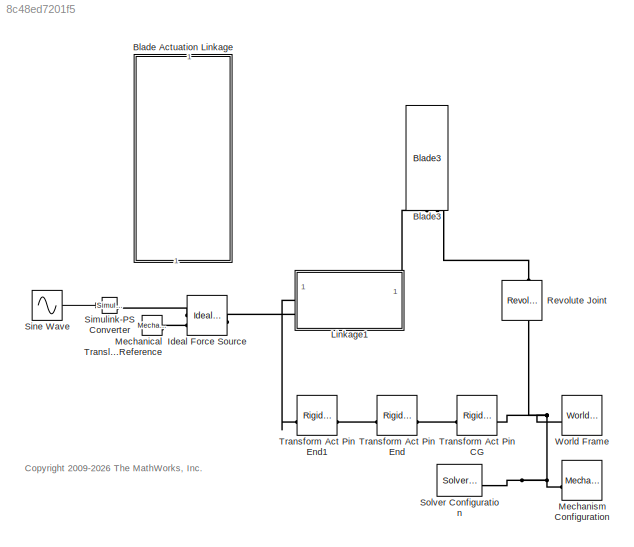
MODEL slx_8c48ed7201f5
KIND model
CONFIG EnableMultiTasking = on
CONFIG SolverName = ode15s
BLOCK [SubSystem] Blade Actuation Linkage
  NameLocation = left
BLOCK [Reference] Blade3  REF=Blades_Lib/Blades/Blade3
  NameLocation = right
  SourceBlock = Blades_Lib/Blades/Blade3
  SourceType = SubSystem
BLOCK [Reference] Ideal Force Source  REF=fl_lib/Mechanical/Mechanical Sources/Ideal Force Source
  SourceBlock = fl_lib/Mechanical/Mechanical Sources/Ideal Force Source
  SourceType = Ideal Force Source
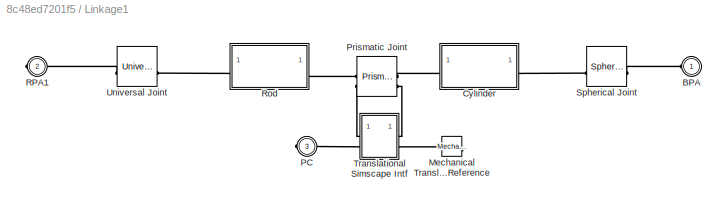
BLOCK [SubSystem] Linkage1
BLOCK [PMIOPort] Linkage1/BPA
  Side = Left
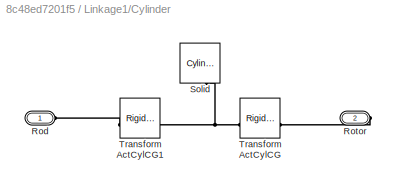
BLOCK [SubSystem] Linkage1/Cylinder
BLOCK [PMIOPort] Linkage1/Cylinder/Rod
  Side = Left
BLOCK [PMIOPort] Linkage1/Cylinder/Rotor
  Port = 2
  Side = Right
BLOCK [Reference] Linkage1/Cylinder/Solid  REF=sm_lib/Body Elements/Cylindrical Solid
  NameLocation = left
  SourceBlock = sm_lib/Body Elements/Cylindrical Solid
  SourceType = Cylindrical Solid
BLOCK [Reference] Linkage1/Cylinder/Transform ActCylCG  REF=sm_lib/Frames and
Transforms/Rigid
Transform
  SourceBlock = sm_lib/Frames and\nTransforms/Rigid\nTransform
  SourceType = Rigid\nTransform
BLOCK [Reference] Linkage1/Cylinder/Transform ActCylCG1  REF=sm_lib/Frames and
Transforms/Rigid
Transform
  SourceBlock = sm_lib/Frames and\nTransforms/Rigid\nTransform
  SourceType = Rigid\nTransform
BLOCK [Reference] Linkage1/Mechanical Translational Reference  REF=fl_lib/Mechanical/Translational
Elements/Mechanical
Translational
Reference
  NameLocation = top
  SourceBlock = fl_lib/Mechanical/Translational\nElements/Mechanical\nTranslational\nReference
  SourceType = Mechanical\nTranslational\nReference
BLOCK [PMIOPort] Linkage1/PC
  Port = 3
  Side = Right
BLOCK [Reference] Linkage1/Prismatic  Joint  REF=sm_lib/Joints/Prismatic
Joint
  NameLocation = top
  SourceBlock = sm_lib/Joints/Prismatic\nJoint
  SourceType = Prismatic\nJoint
BLOCK [PMIOPort] Linkage1/RPA1
  Port = 2
  Side = Right
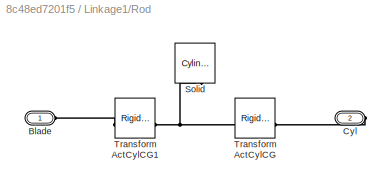
BLOCK [SubSystem] Linkage1/Rod
BLOCK [PMIOPort] Linkage1/Rod/Blade
  Side = Left
BLOCK [PMIOPort] Linkage1/Rod/Cyl
  Port = 2
  Side = Right
BLOCK [Reference] Linkage1/Rod/Solid  REF=sm_lib/Body Elements/Cylindrical Solid
  NameLocation = left
  SourceBlock = sm_lib/Body Elements/Cylindrical Solid
  SourceType = Cylindrical Solid
BLOCK [Reference] Linkage1/Rod/Transform ActCylCG  REF=sm_lib/Frames and
Transforms/Rigid
Transform
  SourceBlock = sm_lib/Frames and\nTransforms/Rigid\nTransform
  SourceType = Rigid\nTransform
BLOCK [Reference] Linkage1/Rod/Transform ActCylCG1  REF=sm_lib/Frames and
Transforms/Rigid
Transform
  SourceBlock = sm_lib/Frames and\nTransforms/Rigid\nTransform
  SourceType = Rigid\nTransform
BLOCK [Reference] Linkage1/Spherical  Joint  REF=sm_lib/Joints/Spherical
Joint
  SourceBlock = sm_lib/Joints/Spherical\nJoint
  SourceType = Spherical\nJoint
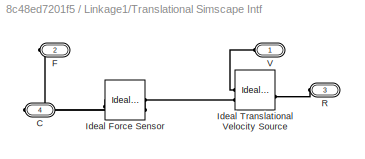
BLOCK [SubSystem] Linkage1/Translational Simscape Intf
BLOCK [PMIOPort] Linkage1/Translational Simscape Intf/C
  Port = 4
  Side = Right
BLOCK [PMIOPort] Linkage1/Translational Simscape Intf/F
  NameLocation = top
  Port = 2
  Side = Right
BLOCK [Reference] Linkage1/Translational Simscape Intf/Ideal Force Sensor  REF=fl_lib/Mechanical/Mechanical Sensors/Ideal Force Sensor
  SourceBlock = fl_lib/Mechanical/Mechanical Sensors/Ideal Force Sensor
  SourceType = Ideal Force Sensor
BLOCK [Reference] Linkage1/Translational Simscape Intf/Ideal Translational Velocity Source  REF=fl_lib/Mechanical/Mechanical Sources/Ideal Translational
Velocity Source
  SourceBlock = fl_lib/Mechanical/Mechanical Sources/Ideal Translational\nVelocity Source
  SourceType = Ideal Translational\nVelocity Source
BLOCK [PMIOPort] Linkage1/Translational Simscape Intf/R
  Port = 3
  Side = Left
BLOCK [PMIOPort] Linkage1/Translational Simscape Intf/V
  NameLocation = top
  Side = Left
BLOCK [Reference] Linkage1/Universal  Joint  REF=sm_lib/Joints/Universal
Joint
  SourceBlock = sm_lib/Joints/Universal\nJoint
  SourceType = Universal\nJoint
BLOCK [Reference] Mechanical Translational Reference  REF=fl_lib/Mechanical/Translational
Elements/Mechanical
Translational
Reference
  SourceBlock = fl_lib/Mechanical/Translational\nElements/Mechanical\nTranslational\nReference
  SourceType = Mechanical\nTranslational\nReference
BLOCK [Reference] Mechanism Configuration  REF=sm_lib/Utilities/Mechanism
Configuration
  SourceBlock = sm_lib/Utilities/Mechanism\nConfiguration
  SourceType = Mechanism\nConfiguration
BLOCK [Reference] Revolute Joint  REF=sm_lib/Joints/Revolute Joint
  NameLocation = right
  SourceBlock = sm_lib/Joints/Revolute Joint
  SourceType = Revolute Joint
BLOCK [Reference] Simulink-PS Converter  REF=nesl_utility/Simulink-PS
Converter
  SourceBlock = nesl_utility/Simulink-PS\nConverter
  SourceType = Simulink-PS\nConverter
BLOCK [Sin] Sine Wave
  Amplitude = 1e5
  Phase = pi/2
  SampleTime = 0
BLOCK [Reference] Solver Configuration  REF=nesl_utility/Solver
Configuration
  SourceBlock = nesl_utility/Solver\nConfiguration
  SourceType = Solver\nConfiguration
BLOCK [Reference] Transform Act Pin CG  REF=sm_lib/Frames and
Transforms/Rigid
Transform
  NameLocation = top
  SourceBlock = sm_lib/Frames and\nTransforms/Rigid\nTransform
  SourceType = Rigid\nTransform
BLOCK [Reference] Transform Act Pin End  REF=sm_lib/Frames and
Transforms/Rigid
Transform
  NameLocation = top
  SourceBlock = sm_lib/Frames and\nTransforms/Rigid\nTransform
  SourceType = Rigid\nTransform
BLOCK [Reference] Transform Act Pin End1  REF=sm_lib/Frames and
Transforms/Rigid
Transform
  NameLocation = top
  SourceBlock = sm_lib/Frames and\nTransforms/Rigid\nTransform
  SourceType = Rigid\nTransform
BLOCK [Reference] World Frame  REF=sm_lib/Frames and
Transforms/World Frame
  SourceBlock = sm_lib/Frames and\nTransforms/World Frame
  SourceType = World Frame
ANNOTATION (root): <copyright redacted>
LINE Sine Wave:1 -> Simulink-PS Converter:1
PLINE Blade3:LConn1 -- Linkage1:LConn1
PLINE Blade3:LConn2 -- Revolute Joint:LConn1
PLINE Ideal Force Source:LConn1 -- Linkage1:RConn2
PLINE Ideal Force Source:RConn1 -- Simulink-PS Converter:RConn1
PLINE Ideal Force Source:RConn2 -- Mechanical Translational Reference:LConn1
PLINE Linkage1/BPA:RConn1 -- Linkage1/Spherical  Joint:RConn1
PLINE Linkage1/Cylinder/Rod:RConn1 -- Linkage1/Cylinder/Transform ActCylCG1:RConn1
PLINE Linkage1/Cylinder/Rotor:RConn1 -- Linkage1/Cylinder/Transform ActCylCG:LConn1
PNET net1: Linkage1/Cylinder/Solid:RConn1 -- Linkage1/Cylinder/Transform ActCylCG1:LConn1 -- Linkage1/Cylinder/Transform ActCylCG:RConn1
PLINE Linkage1/Cylinder:LConn1 -- Linkage1/Prismatic  Joint:LConn1
PLINE Linkage1/Cylinder:RConn1 -- Linkage1/Spherical  Joint:LConn1
PLINE Linkage1/Mechanical Translational Reference:LConn1 -- Linkage1/Translational Simscape Intf:RConn2
PLINE Linkage1/PC:RConn1 -- Linkage1/Translational Simscape Intf:LConn2
PLINE Linkage1/Prismatic  Joint:LConn2 -- Linkage1/Translational Simscape Intf:RConn1
PLINE Linkage1/Prismatic  Joint:RConn1 -- Linkage1/Rod:RConn1
PLINE Linkage1/Prismatic  Joint:RConn2 -- Linkage1/Translational Simscape Intf:LConn1
PLINE Linkage1/RPA1:RConn1 -- Linkage1/Universal  Joint:RConn1
PLINE Linkage1/Rod/Blade:RConn1 -- Linkage1/Rod/Transform ActCylCG1:RConn1
PLINE Linkage1/Rod/Cyl:RConn1 -- Linkage1/Rod/Transform ActCylCG:LConn1
PNET net2: Linkage1/Rod/Solid:RConn1 -- Linkage1/Rod/Transform ActCylCG1:LConn1 -- Linkage1/Rod/Transform ActCylCG:RConn1
PLINE Linkage1/Rod:LConn1 -- Linkage1/Universal  Joint:LConn1
PLINE Linkage1/Translational Simscape Intf/C:RConn1 -- Linkage1/Translational Simscape Intf/Ideal Force Sensor:RConn1
PLINE Linkage1/Translational Simscape Intf/F:RConn1 -- Linkage1/Translational Simscape Intf/Ideal Force Sensor:RConn2
PLINE Linkage1/Translational Simscape Intf/Ideal Force Sensor:LConn1 -- Linkage1/Translational Simscape Intf/Ideal Translational Velocity Source:RConn2
PLINE Linkage1/Translational Simscape Intf/Ideal Translational Velocity Source:LConn1 -- Linkage1/Translational Simscape Intf/R:RConn1
PLINE Linkage1/Translational Simscape Intf/Ideal Translational Velocity Source:RConn1 -- Linkage1/Translational Simscape Intf/V:RConn1
PLINE Linkage1:RConn1 -- Transform Act Pin End1:RConn1
PNET net3: Mechanism Configuration:RConn1 -- Revolute Joint:RConn1 -- Solver Configuration:RConn1 -- Transform Act Pin CG:LConn1 -- World Frame:RConn1
PLINE Transform Act Pin CG:RConn1 -- Transform Act Pin End:LConn1
PLINE Transform Act Pin End1:LConn1 -- Transform Act Pin End:RConn1
note: PNET lines group multi-terminal physical nets as a canonical sorted terminal list (undirected conserving connections); 2-terminal nets keep the pairwise PLINE form
